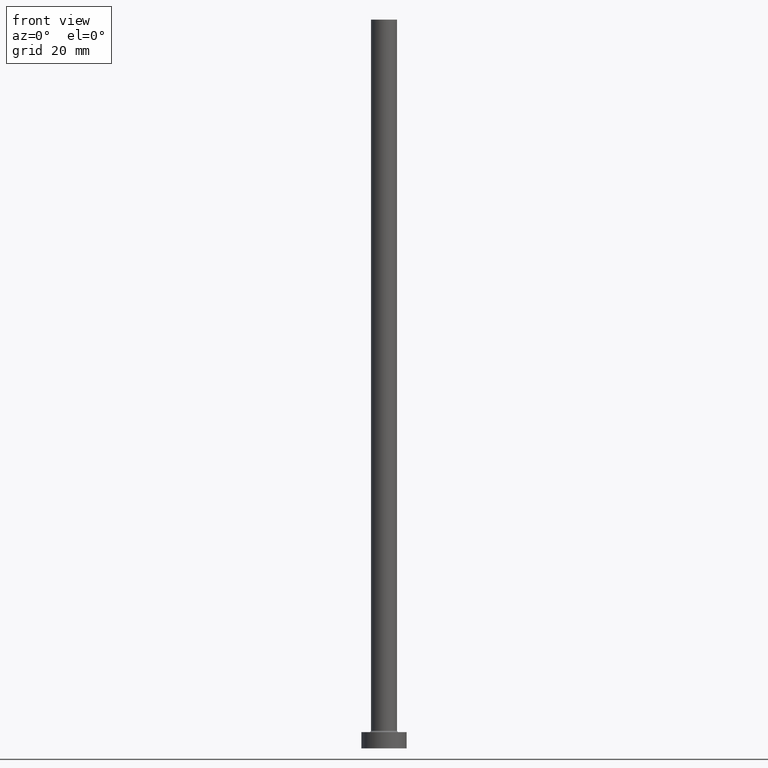
[diagram: clean part render]
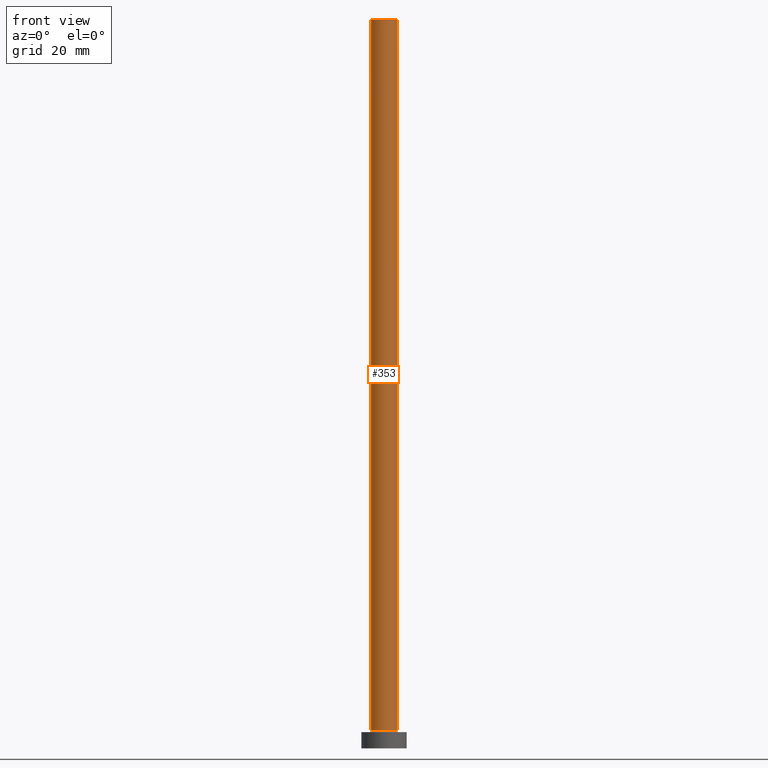
[diagram: same view with one face highlighted and labeled with its STEP entity id]
A machine part, front view. The second image highlights one B-rep face of the part: STEP entity #353.
In plain terms, the highlighted cylindrical surface (edge-blend (fillet) strip) has radius 4 mm, axis along (-0, -0, -1).
Its self-contained STEP definition (entity closure, byte-faithful):
#3 = LINE ( 'NONE', #457, #106 ) ;
#21 = DIRECTION ( 'NONE',  ( -0.000000000000000000, -0.000000000000000000, -1.000000000000000000 ) ) ;
#54 = EDGE_LOOP ( 'NONE', ( #395, #217, #176, #434 ) ) ;
#57 = DIRECTION ( 'NONE',  ( 0.000000000000000000, 0.000000000000000000, 1.000000000000000000 ) ) ;
#63 = CARTESIAN_POINT ( 'NONE',  ( 0.000000000000000000, 0.000000000000000000, 5.500000000000005329 ) ) ;
#68 = CARTESIAN_POINT ( 'NONE',  ( 4.000000000000000000, 4.898587196589412829E-16, 5.500000000000005329 ) ) ;
#70 = AXIS2_PLACEMENT_3D ( 'NONE', #207, #57, #275 ) ;
#90 = AXIS2_PLACEMENT_3D ( 'NONE', #63, #167, #269 ) ;
#92 = EDGE_CURVE ( 'NONE', #124, #95, #307, .T. ) ;
#95 = VERTEX_POINT ( 'NONE', #170 ) ;
#99 = EDGE_CURVE ( 'NONE', #95, #316, #418, .T. ) ;
#106 = VECTOR ( 'NONE', #399, 1000.000000000000000 ) ;
#111 = CARTESIAN_POINT ( 'NONE',  ( 0.000000000000000000, 0.000000000000000000, 225.0000000000000000 ) ) ;
#124 = VERTEX_POINT ( 'NONE', #140 ) ;
#140 = CARTESIAN_POINT ( 'NONE',  ( -4.000000000000000000, 0.000000000000000000, 225.0000000000000000 ) ) ;
#141 = EDGE_CURVE ( 'NONE', #124, #160, #293, .T. ) ;
#160 = VERTEX_POINT ( 'NONE', #341 ) ;
#167 = DIRECTION ( 'NONE',  ( 0.000000000000000000, 0.000000000000000000, 1.000000000000000000 ) ) ;
#170 = CARTESIAN_POINT ( 'NONE',  ( -4.000000000000000000, 0.000000000000000000, 5.500000000000005329 ) ) ;
#176 = ORIENTED_EDGE ( 'NONE', *, *, #92, .T. ) ;
#207 = CARTESIAN_POINT ( 'NONE',  ( 0.000000000000000000, 0.000000000000000000, 225.0000000000000000 ) ) ;
#217 = ORIENTED_EDGE ( 'NONE', *, *, #141, .F. ) ;
#269 = DIRECTION ( 'NONE',  ( 1.000000000000000000, 0.000000000000000000, 0.000000000000000000 ) ) ;
#275 = DIRECTION ( 'NONE',  ( 1.000000000000000000, 0.000000000000000000, 0.000000000000000000 ) ) ;
#277 = FACE_OUTER_BOUND ( 'NONE', #54, .T. ) ;
#288 = DIRECTION ( 'NONE',  ( -1.000000000000000000, 0.000000000000000000, 0.000000000000000000 ) ) ;
#293 = CIRCLE ( 'NONE', #70, 4.000000000000000000 ) ;
#306 = VECTOR ( 'NONE', #21, 1000.000000000000000 ) ;
#307 = LINE ( 'NONE', #378, #306 ) ;
#316 = VERTEX_POINT ( 'NONE', #68 ) ;
#341 = CARTESIAN_POINT ( 'NONE',  ( 4.000000000000000000, 4.898587196589412829E-16, 225.0000000000000000 ) ) ;
#353 = ADVANCED_FACE ( 'NONE', ( #277 ), #413, .T. ) ;
#378 = CARTESIAN_POINT ( 'NONE',  ( -4.000000000000000000, 0.000000000000000000, 225.0000000000000000 ) ) ;
#379 = AXIS2_PLACEMENT_3D ( 'NONE', #111, #383, #288 ) ;
#383 = DIRECTION ( 'NONE',  ( -0.000000000000000000, -0.000000000000000000, -1.000000000000000000 ) ) ;
#395 = ORIENTED_EDGE ( 'NONE', *, *, #398, .F. ) ;
#398 = EDGE_CURVE ( 'NONE', #160, #316, #3, .T. ) ;
#399 = DIRECTION ( 'NONE',  ( -0.000000000000000000, -0.000000000000000000, -1.000000000000000000 ) ) ;
#413 = CYLINDRICAL_SURFACE ( 'NONE', #379, 4.000000000000000000 ) ;
#418 = CIRCLE ( 'NONE', #90, 4.000000000000000000 ) ;
#434 = ORIENTED_EDGE ( 'NONE', *, *, #99, .T. ) ;
#457 = CARTESIAN_POINT ( 'NONE',  ( 4.000000000000000000, 4.898587196589412829E-16, 225.0000000000000000 ) ) ;